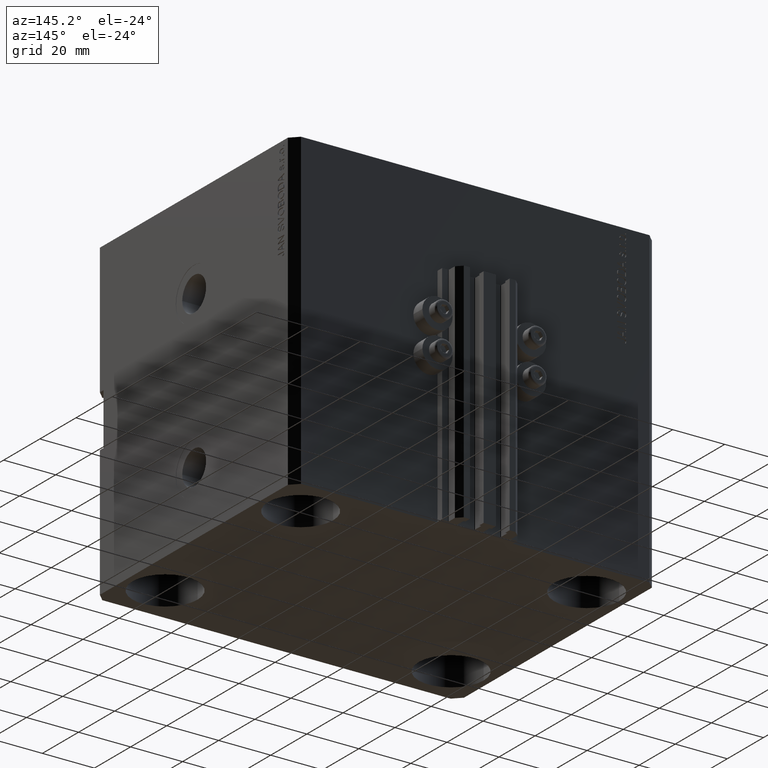
[diagram: clean part render]
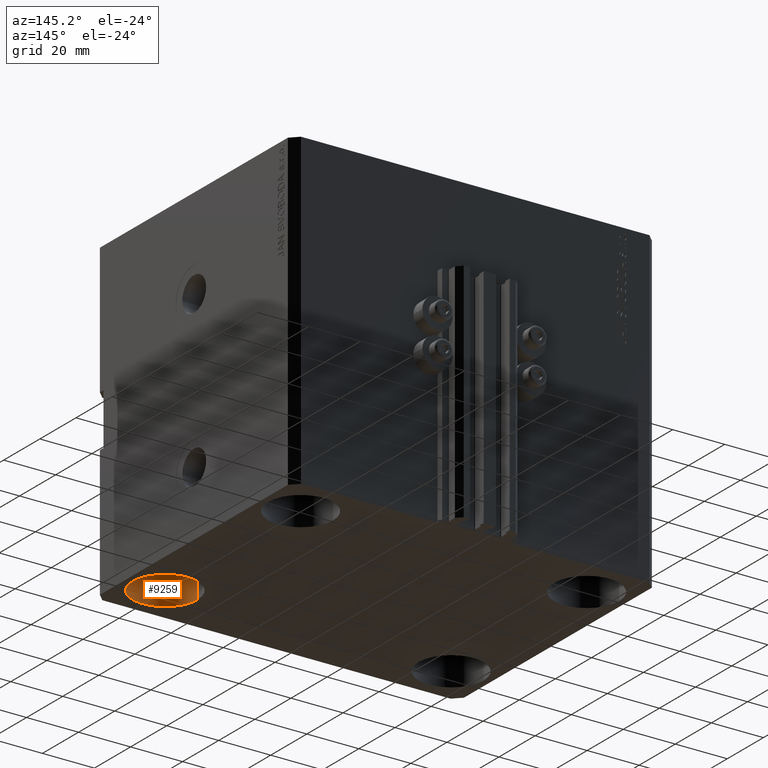
[diagram: same view with one face highlighted and labeled with its STEP entity id]
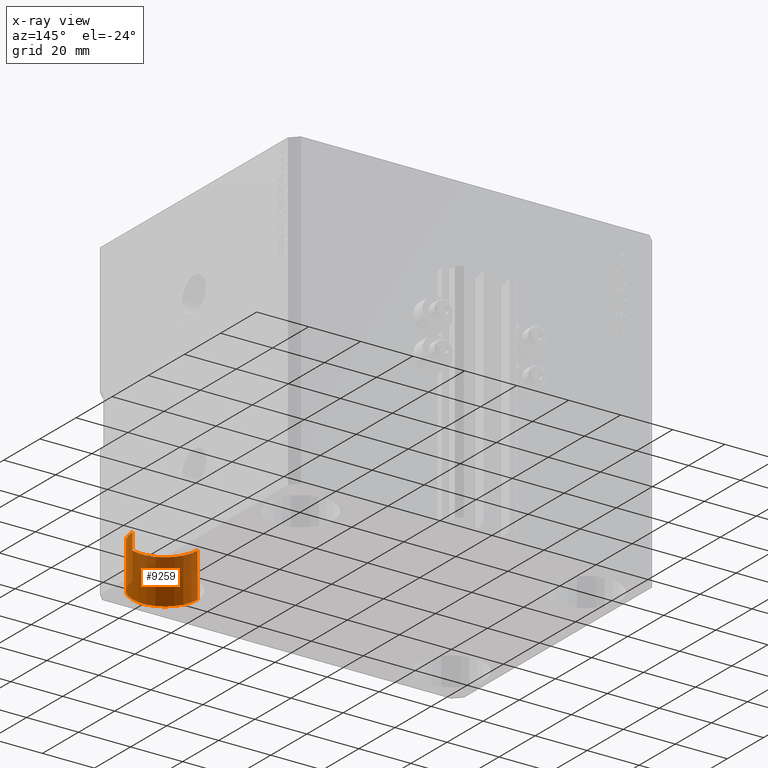
[diagram: x-ray of the same camera — body ghosted, the highlighted face saturated]
A machine part, auxiliary view. The second image highlights one B-rep face of the part: STEP entity #9259.
The next image is the same camera in x-ray: the body ghosted, the highlighted face saturated — about 31% of this face is hidden behind the body in this view.
In plain terms, the highlighted cylindrical surface (partial cylindrical patch) has radius 12.5 mm, axis along (-0, -0, -1).
Its self-contained STEP definition (entity closure, byte-faithful):
#1150 = EDGE_CURVE ( 'NONE', #3320, #45583, #38546, .T. ) ;
#1934 = ORIENTED_EDGE ( 'NONE', *, *, #1150, .F. ) ;
#2444 = DIRECTION ( 'NONE',  ( -0.000000000000000000, -0.000000000000000000, -1.000000000000000000 ) ) ;
#3320 = VERTEX_POINT ( 'NONE', #42057 ) ;
#3593 = DIRECTION ( 'NONE',  ( -0.000000000000000000, -0.000000000000000000, -1.000000000000000000 ) ) ;
#7598 = CARTESIAN_POINT ( 'NONE',  ( 55.00000000000000711, -37.50000000000000711, -120.0000000000000000 ) ) ;
#9259 = ADVANCED_FACE ( 'NONE', ( #26290 ), #30229, .F. ) ;
#9262 = CIRCLE ( 'NONE', #22760, 12.49999999999999645 ) ;
#10574 = CARTESIAN_POINT ( 'NONE',  ( 67.50000000000000000, -37.50000000000000711, -103.0000000000000000 ) ) ;
#12945 = CARTESIAN_POINT ( 'NONE',  ( 55.00000000000000711, -37.50000000000000711, -103.0000000000000000 ) ) ;
#15021 = DIRECTION ( 'NONE',  ( 1.000000000000000000, 0.000000000000000000, 0.000000000000000000 ) ) ;
#16161 = VECTOR ( 'NONE', #27200, 1000.000000000000000 ) ;
#18910 = CARTESIAN_POINT ( 'NONE',  ( 55.00000000000000711, -37.50000000000000711, -103.0000000000000000 ) ) ;
#19880 = VECTOR ( 'NONE', #2444, 1000.000000000000000 ) ;
#20039 = CARTESIAN_POINT ( 'NONE',  ( 42.50000000000000711, -37.50000000000000711, -103.0000000000000000 ) ) ;
#20342 = DIRECTION ( 'NONE',  ( 1.000000000000000000, 0.000000000000000000, 0.000000000000000000 ) ) ;
#21428 = LINE ( 'NONE', #10574, #19880 ) ;
#22760 = AXIS2_PLACEMENT_3D ( 'NONE', #12945, #46726, #20342 ) ;
#25689 = EDGE_CURVE ( 'NONE', #38892, #41573, #21428, .T. ) ;
#26290 = FACE_OUTER_BOUND ( 'NONE', #38876, .T. ) ;
#27200 = DIRECTION ( 'NONE',  ( -0.000000000000000000, -0.000000000000000000, -1.000000000000000000 ) ) ;
#30229 = CYLINDRICAL_SURFACE ( 'NONE', #38367, 12.49999999999999645 ) ;
#30718 = CARTESIAN_POINT ( 'NONE',  ( 42.50000000000000711, -37.50000000000000711, -120.0000000000000000 ) ) ;
#32647 = CARTESIAN_POINT ( 'NONE',  ( 67.50000000000000000, -37.50000000000000711, -103.0000000000000000 ) ) ;
#32780 = CIRCLE ( 'NONE', #41464, 12.49999999999999645 ) ;
#38113 = DIRECTION ( 'NONE',  ( -1.000000000000000000, 0.000000000000000000, 0.000000000000000000 ) ) ;
#38367 = AXIS2_PLACEMENT_3D ( 'NONE', #18910, #3593, #38113 ) ;
#38546 = LINE ( 'NONE', #20039, #16161 ) ;
#38876 = EDGE_LOOP ( 'NONE', ( #40221, #40449, #42957, #1934 ) ) ;
#38892 = VERTEX_POINT ( 'NONE', #32647 ) ;
#39666 = EDGE_CURVE ( 'NONE', #45583, #41573, #32780, .T. ) ;
#40221 = ORIENTED_EDGE ( 'NONE', *, *, #45705, .T. ) ;
#40327 = CARTESIAN_POINT ( 'NONE',  ( 67.50000000000000000, -37.50000000000000711, -120.0000000000000000 ) ) ;
#40449 = ORIENTED_EDGE ( 'NONE', *, *, #25689, .T. ) ;
#40914 = DIRECTION ( 'NONE',  ( -0.000000000000000000, -0.000000000000000000, 1.000000000000000000 ) ) ;
#41464 = AXIS2_PLACEMENT_3D ( 'NONE', #7598, #40914, #15021 ) ;
#41573 = VERTEX_POINT ( 'NONE', #40327 ) ;
#42057 = CARTESIAN_POINT ( 'NONE',  ( 42.50000000000000711, -37.50000000000000711, -103.0000000000000000 ) ) ;
#42957 = ORIENTED_EDGE ( 'NONE', *, *, #39666, .F. ) ;
#45583 = VERTEX_POINT ( 'NONE', #30718 ) ;
#45705 = EDGE_CURVE ( 'NONE', #3320, #38892, #9262, .T. ) ;
#46726 = DIRECTION ( 'NONE',  ( -0.000000000000000000, -0.000000000000000000, 1.000000000000000000 ) ) ;